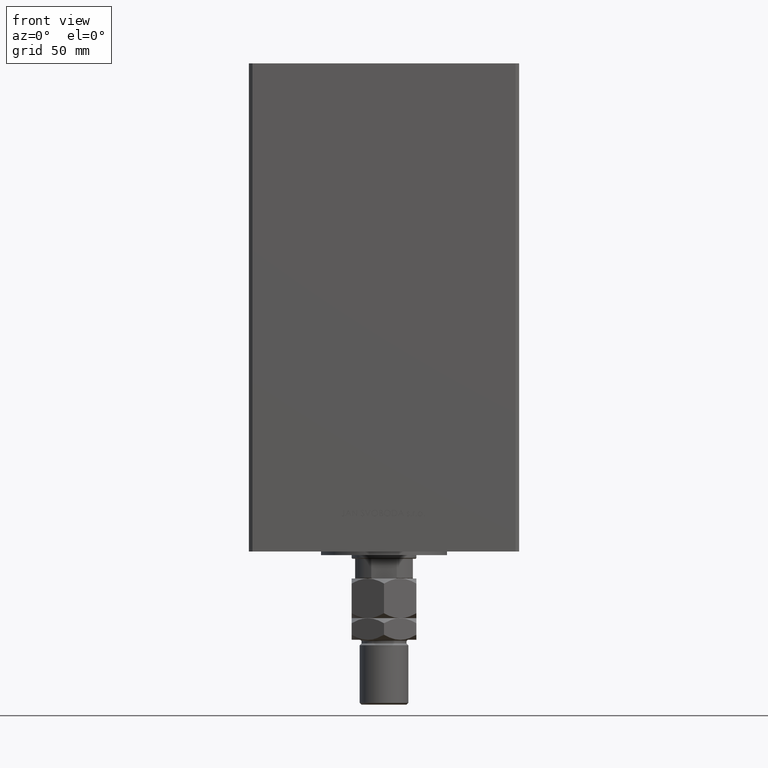
[diagram: clean part render]
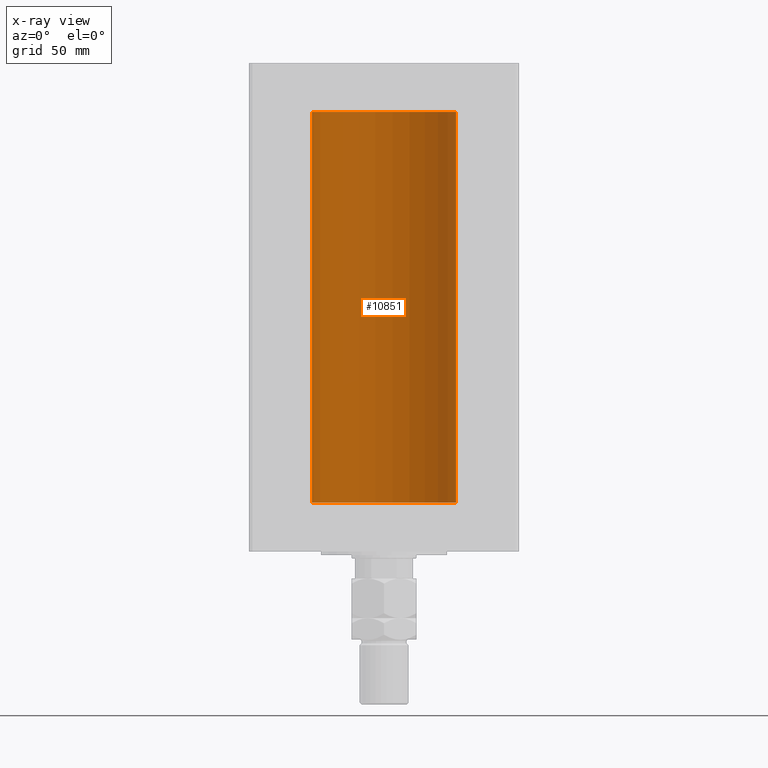
[diagram: x-ray — body ghosted, one internal face saturated and labeled with its STEP entity id]
A machine part, front view, then the same camera in x-ray: the body is ghosted and one INTERNAL B-rep face — a face not visible from any outside direction — is saturated and labeled: STEP entity #10851.
In plain terms, the highlighted cylindrical surface (partial cylindrical patch) has radius 40 mm, axis along (-0, -0, -1).
Its self-contained STEP definition (entity closure, byte-faithful):
#2152 = DIRECTION ( 'NONE',  ( -1.000000000000000000, 0.000000000000000000, 0.000000000000000000 ) ) ;
#3799 = VECTOR ( 'NONE', #20625, 1000.000000000000000 ) ;
#4996 = CARTESIAN_POINT ( 'NONE',  ( 40.00000000000000000, 4.898587196589413026E-15, 217.0000000000000000 ) ) ;
#7285 = AXIS2_PLACEMENT_3D ( 'NONE', #36609, #44256, #13060 ) ;
#7360 = ORIENTED_EDGE ( 'NONE', *, *, #32203, .T. ) ;
#8201 = CIRCLE ( 'NONE', #20486, 40.00000000000000000 ) ;
#9952 = EDGE_CURVE ( 'NONE', #41408, #21476, #40072, .T. ) ;
#10851 = ADVANCED_FACE ( 'NONE', ( #48726 ), #25703, .F. ) ;
#10984 = CARTESIAN_POINT ( 'NONE',  ( 40.00000000000000000, 4.898587196589413026E-15, 0.000000000000000000 ) ) ;
#13060 = DIRECTION ( 'NONE',  ( 1.000000000000000000, 0.000000000000000000, 0.000000000000000000 ) ) ;
#16914 = AXIS2_PLACEMENT_3D ( 'NONE', #48212, #41300, #2152 ) ;
#19260 = DIRECTION ( 'NONE',  ( 1.000000000000000000, 0.000000000000000000, 0.000000000000000000 ) ) ;
#20486 = AXIS2_PLACEMENT_3D ( 'NONE', #30771, #46365, #19260 ) ;
#20625 = DIRECTION ( 'NONE',  ( -0.000000000000000000, -0.000000000000000000, -1.000000000000000000 ) ) ;
#21476 = VERTEX_POINT ( 'NONE', #10984 ) ;
#25283 = CIRCLE ( 'NONE', #7285, 40.00000000000000000 ) ;
#25703 = CYLINDRICAL_SURFACE ( 'NONE', #16914, 40.00000000000000000 ) ;
#25991 = CARTESIAN_POINT ( 'NONE',  ( -40.00000000000000000, 0.000000000000000000, 217.0000000000000000 ) ) ;
#26210 = DIRECTION ( 'NONE',  ( -0.000000000000000000, -0.000000000000000000, -1.000000000000000000 ) ) ;
#26684 = CARTESIAN_POINT ( 'NONE',  ( 40.00000000000000000, 4.898587196589413026E-15, 217.0000000000000000 ) ) ;
#26710 = EDGE_CURVE ( 'NONE', #29784, #46621, #33883, .T. ) ;
#27140 = ORIENTED_EDGE ( 'NONE', *, *, #26710, .T. ) ;
#29784 = VERTEX_POINT ( 'NONE', #25991 ) ;
#29947 = ORIENTED_EDGE ( 'NONE', *, *, #35770, .F. ) ;
#30041 = CARTESIAN_POINT ( 'NONE',  ( -40.00000000000000000, 0.000000000000000000, 217.0000000000000000 ) ) ;
#30771 = CARTESIAN_POINT ( 'NONE',  ( 0.000000000000000000, 0.000000000000000000, 0.000000000000000000 ) ) ;
#32203 = EDGE_CURVE ( 'NONE', #41408, #29784, #25283, .T. ) ;
#33883 = LINE ( 'NONE', #30041, #43442 ) ;
#35770 = EDGE_CURVE ( 'NONE', #21476, #46621, #8201, .T. ) ;
#36225 = EDGE_LOOP ( 'NONE', ( #38604, #7360, #27140, #29947 ) ) ;
#36609 = CARTESIAN_POINT ( 'NONE',  ( 0.000000000000000000, 0.000000000000000000, 217.0000000000000000 ) ) ;
#38604 = ORIENTED_EDGE ( 'NONE', *, *, #9952, .F. ) ;
#40072 = LINE ( 'NONE', #4996, #3799 ) ;
#41300 = DIRECTION ( 'NONE',  ( -0.000000000000000000, -0.000000000000000000, -1.000000000000000000 ) ) ;
#41408 = VERTEX_POINT ( 'NONE', #26684 ) ;
#43442 = VECTOR ( 'NONE', #26210, 1000.000000000000000 ) ;
#44256 = DIRECTION ( 'NONE',  ( -0.000000000000000000, 0.000000000000000000, 1.000000000000000000 ) ) ;
#45306 = CARTESIAN_POINT ( 'NONE',  ( -40.00000000000000000, 0.000000000000000000, 0.000000000000000000 ) ) ;
#46365 = DIRECTION ( 'NONE',  ( -0.000000000000000000, 0.000000000000000000, 1.000000000000000000 ) ) ;
#46621 = VERTEX_POINT ( 'NONE', #45306 ) ;
#48212 = CARTESIAN_POINT ( 'NONE',  ( 0.000000000000000000, 0.000000000000000000, 217.0000000000000000 ) ) ;
#48726 = FACE_OUTER_BOUND ( 'NONE', #36225, .T. ) ;